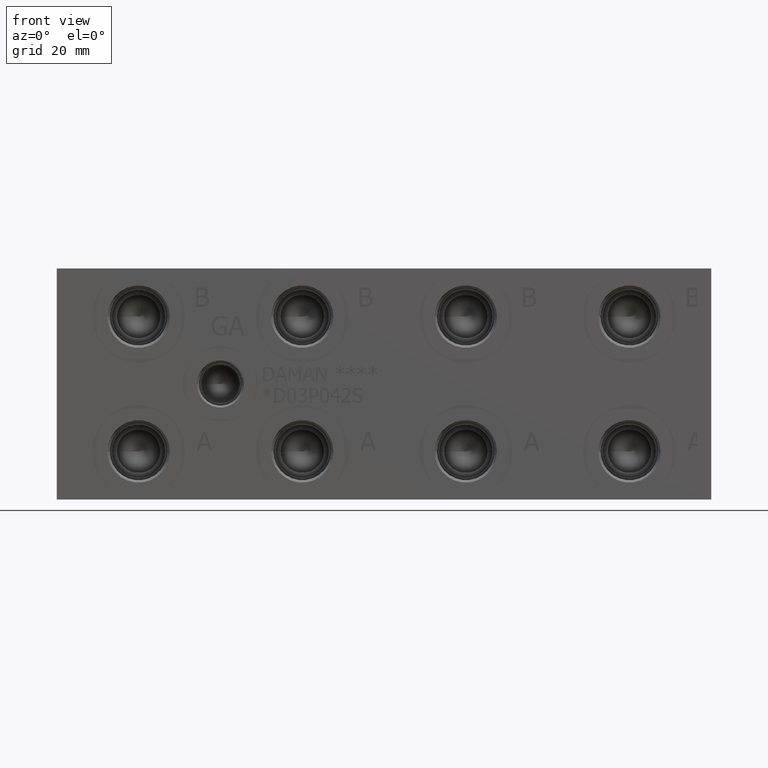
[diagram: clean part render]
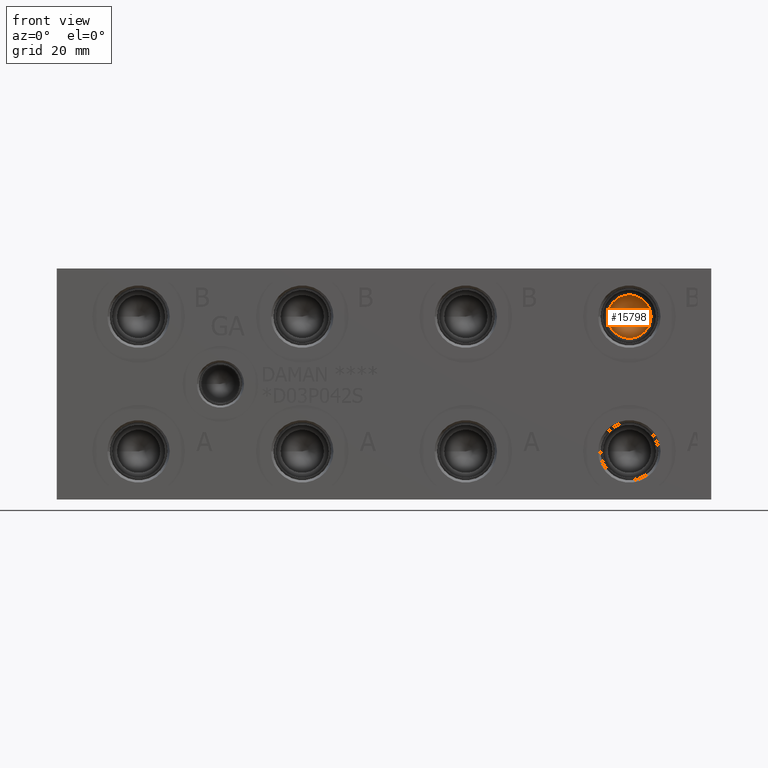
[diagram: same view with one face highlighted and labeled with its STEP entity id]
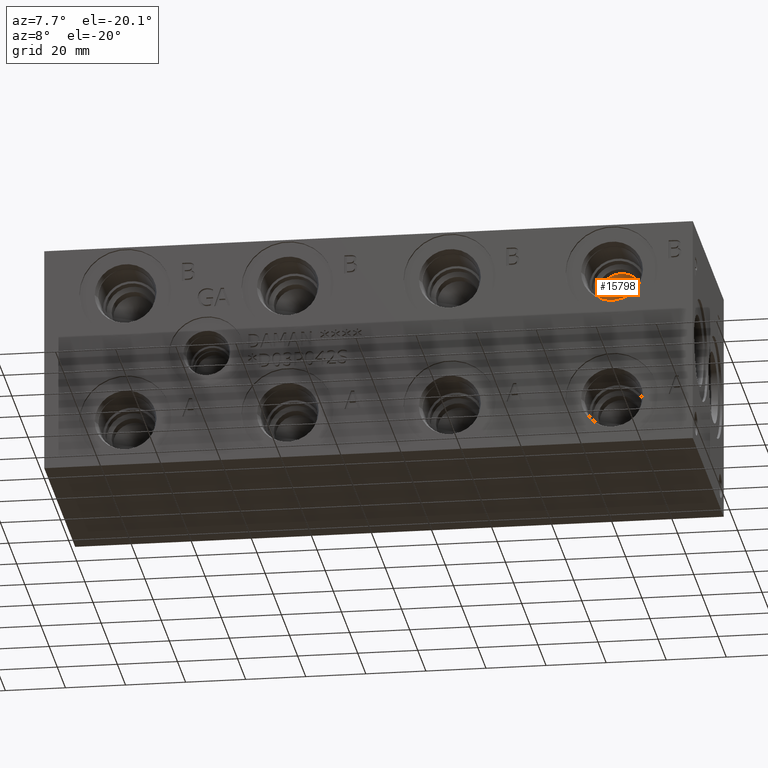
[diagram: same view with one face highlighted and labeled with its STEP entity id]
A machine part, front view. The second image highlights one B-rep face of the part: STEP entity #15798.
A second angle (auxiliary view) of the same face is appended — the face is thin or edge-on in the first view.
In plain terms, the highlighted conical surface has half-angle 60 deg.
Its self-contained STEP definition (entity closure, byte-faithful):
#194=CONICAL_SURFACE('',#16760,3.57505,1.0471975511966);
#534=CIRCLE('',#16761,7.1501);
#535=CIRCLE('',#16762,7.1501);
#2103=FACE_OUTER_BOUND('',#3030,.T.);
#3030=EDGE_LOOP('',(#13452,#13453,#13454,#13455));
#4492=LINE('',#27010,#5870);
#5870=VECTOR('',#19980,3.57505);
#7318=VERTEX_POINT('',#27006);
#7319=VERTEX_POINT('',#27007);
#7320=VERTEX_POINT('',#27009);
#9439=EDGE_CURVE('',#7318,#7319,#534,.T.);
#9440=EDGE_CURVE('',#7319,#7320,#4492,.T.);
#9441=EDGE_CURVE('',#7319,#7318,#535,.T.);
#13452=ORIENTED_EDGE('',*,*,#9439,.T.);
#13453=ORIENTED_EDGE('',*,*,#9440,.T.);
#13454=ORIENTED_EDGE('',*,*,#9440,.F.);
#13455=ORIENTED_EDGE('',*,*,#9441,.T.);
#15798=ADVANCED_FACE('',(#2103),#194,.F.);
#16760=AXIS2_PLACEMENT_3D('',#27005,#19976,#19977);
#16761=AXIS2_PLACEMENT_3D('',#27008,#19978,#19979);
#16762=AXIS2_PLACEMENT_3D('',#27011,#19981,#19982);
#19976=DIRECTION('center_axis',(0.,-1.,0.));
#19977=DIRECTION('ref_axis',(1.,0.,0.));
#19978=DIRECTION('center_axis',(0.,-1.,0.));
#19979=DIRECTION('ref_axis',(1.,0.,0.));
#19980=DIRECTION('',(0.866025403784439,0.5,1.06057523872491E-16));
#19981=DIRECTION('center_axis',(0.,-1.,0.));
#19982=DIRECTION('ref_axis',(1.,0.,0.));
#27005=CARTESIAN_POINT('Origin',(188.8998,25.1829360798664,60.325));
#27006=CARTESIAN_POINT('',(196.0499,23.11888,60.325));
#27007=CARTESIAN_POINT('',(181.7497,23.11888,60.325));
#27008=CARTESIAN_POINT('Origin',(188.8998,23.11888,60.325));
#27009=CARTESIAN_POINT('',(188.8998,27.2469921597327,60.325));
#27010=CARTESIAN_POINT('',(185.32475,25.1829360798664,60.325));
#27011=CARTESIAN_POINT('Origin',(188.8998,23.11888,60.325));